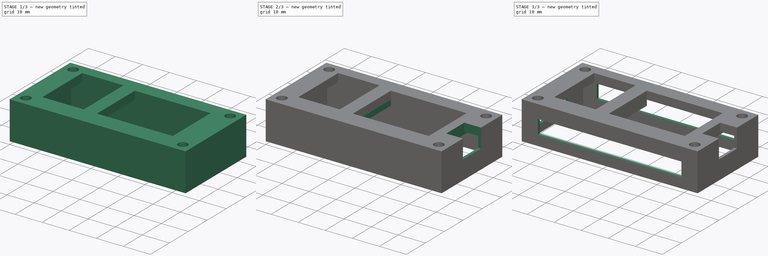
[diagram: build sequence overview — one tinted view per stage of 3, left to right]
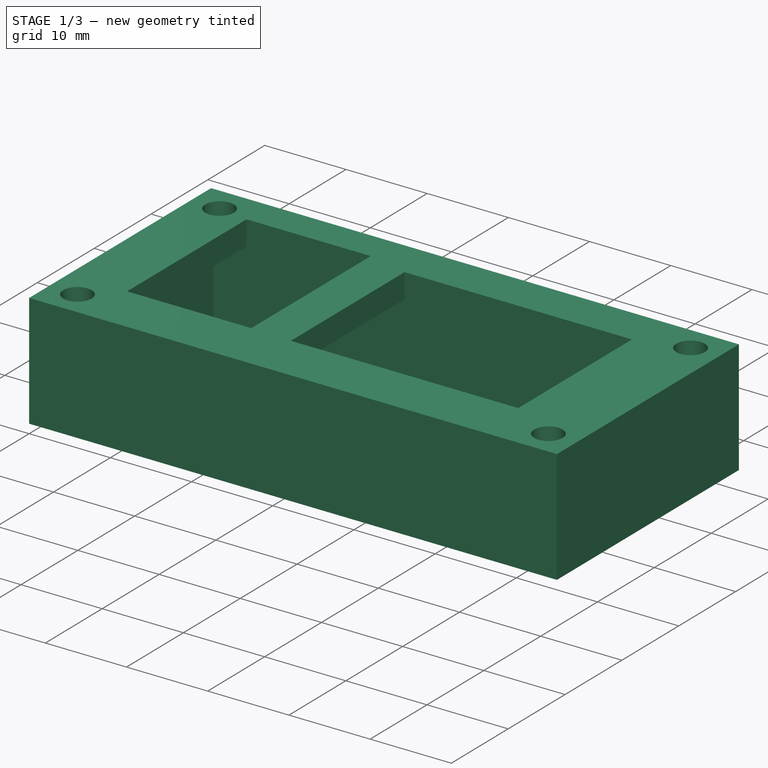
[diagram: stage 1 of 3 — iso view after this stage's code; geometry added in this stage tinted green]
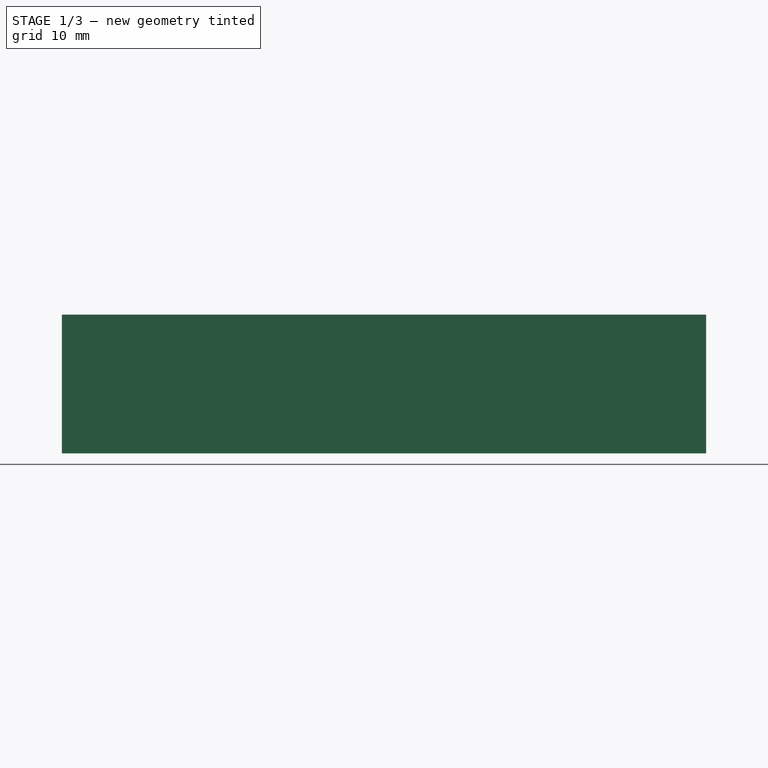
[diagram: stage 1 of 3 — front view after this stage's code; geometry added in this stage tinted green]
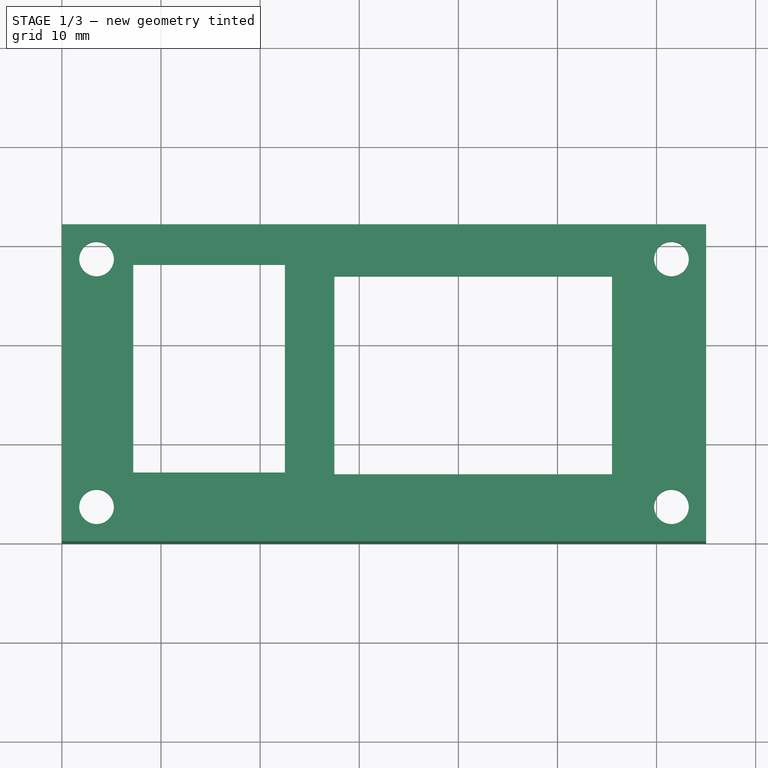
[diagram: stage 1 of 3 — top view after this stage's code; geometry added in this stage tinted green]
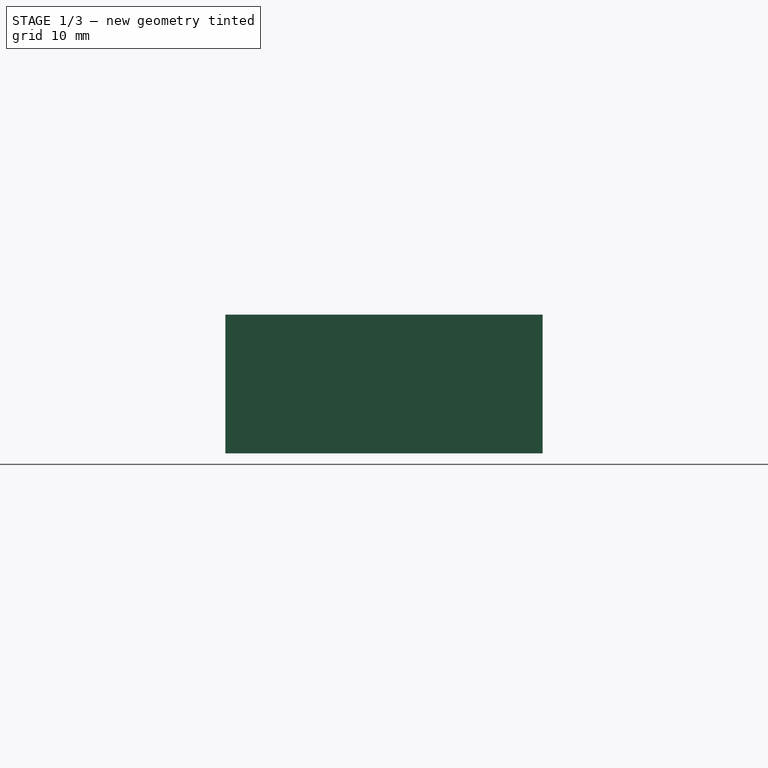
[diagram: stage 1 of 3 — right view after this stage's code; geometry added in this stage tinted green]
FCSTD DOCUMENT  (FreeCAD 0.16R6712 (Git))
Label: horizontal
License: All rights reserved
LicenseURL: http://en.wikipedia.org/wiki/All_rights_reserved
objects: Sketcher::SketchObject×6, PartDesign::Pocket×4, PartDesign::Pad×2
note: 18 computed .brp shape members not serialized (recipe doc carries the construction recipe); baked Part::Feature solids carry a one-line shape summary decoded from their .brp

FEATURE [Sketcher::SketchObject] Sketch
  sketch-geometry (20):
    g0: LineSegment StartX=0 StartY=32 StartZ=0 EndX=65 EndY=32 EndZ=0
    g1: LineSegment StartX=65 StartY=32 StartZ=0 EndX=65 EndY=0 EndZ=0
    g2: LineSegment StartX=65 StartY=0 StartZ=0 EndX=0 EndY=0 EndZ=0
    g3: LineSegment StartX=0 StartY=0 StartZ=0 EndX=0 EndY=32 EndZ=0
    g4: Circle CenterX=3.5 CenterY=28.5 CenterZ=0 NormalX=0 NormalY=0 NormalZ=1 Radius=1.75
    g5: Circle CenterX=61.5 CenterY=28.5 CenterZ=0 NormalX=0 NormalY=0 NormalZ=1 Radius=1.75
    g6: Circle CenterX=3.5 CenterY=3.5 CenterZ=0 NormalX=0 NormalY=0 NormalZ=1 Radius=1.75
    g7: Circle CenterX=61.5 CenterY=3.5 CenterZ=0 NormalX=0 NormalY=0 NormalZ=1 Radius=1.75
    g8: LineSegment [constr] StartX=0 StartY=28.5 StartZ=0 EndX=65 EndY=28.5 EndZ=0
    g9: LineSegment [constr] StartX=0 StartY=3.5 StartZ=0 EndX=65 EndY=3.5 EndZ=0
    g10: LineSegment [constr] StartX=3.5 StartY=32 StartZ=0 EndX=3.5 EndY=0.0651138 EndZ=0
    g11: LineSegment [constr] StartX=61.5 StartY=32 StartZ=0 EndX=61.5 EndY=0 EndZ=0
    g12: LineSegment StartX=27.5 StartY=26.7656 StartZ=0 EndX=55.5 EndY=26.7656 EndZ=0
    g13: LineSegment StartX=55.5 StartY=26.7656 StartZ=0 EndX=55.5 EndY=6.7656 EndZ=0
    g14: LineSegment StartX=55.5 StartY=6.7656 StartZ=0 EndX=27.5 EndY=6.7656 EndZ=0
    g15: LineSegment StartX=27.5 StartY=6.7656 StartZ=0 EndX=27.5 EndY=26.7656 EndZ=0
    g16: LineSegment StartX=7.19996 StartY=27.9539 StartZ=0 EndX=22.5 EndY=27.9539 EndZ=0
    g17: LineSegment StartX=22.5 StartY=27.9539 StartZ=0 EndX=22.5 EndY=6.95394 EndZ=0
    g18: LineSegment StartX=22.5 StartY=6.95394 StartZ=0 EndX=7.19996 EndY=6.95394 EndZ=0
    g19: LineSegment StartX=7.19996 StartY=6.95394 StartZ=0 EndX=7.19996 EndY=27.9539 EndZ=0
  constraints (60):
    c: Coincident(g0,g1)
    c: Coincident(g1,g2)
    c: Coincident(g2,g3)
    c: Coincident(g3,g0)
    c: Horizontal(g0)
    c: Horizontal(g2)
    c: Vertical(g1)
    c: Vertical(g3)
    c: DistanceX(g0,g0) = 65
    c: DistanceY(g3,g3) = 32
    c: Coincident(g2,g-1)
    c: PointOnObject(g8,g3)
    c: PointOnObject(g8,g1)
    c: Horizontal(g8)
    c: PointOnObject(g4,g8)
    c: PointOnObject(g5,g8)
    c: PointOnObject(g9,g3)
    c: PointOnObject(g9,g1)
    c: Horizontal(g9)
    c: PointOnObject(g6,g9)
    c: PointOnObject(g7,g9)
    c: PointOnObject(g10,g0)
    c: Vertical(g10)
    c: PointOnObject(g11,g0)
    c: PointOnObject(g11,g2)
    c: Vertical(g11)
    c: PointOnObject(g7,g11)
    c: PointOnObject(g5,g11)
    c: PointOnObject(g4,g10)
    c: PointOnObject(g6,g10)
    c: Distance(g10,g11) = 58
    c: Distance(g8,g9) = 25
    c: Coincident(g12,g13)
    c: Coincident(g13,g14)
    c: Coincident(g14,g15)
    c: Coincident(g15,g12)
    c: Horizontal(g12)
    c: Horizontal(g14)
    c: Vertical(g13)
    c: Vertical(g15)
    c: DistanceX(g12,g12) = 28
    c: DistanceY(g15,g15) = 20
    c: Coincident(g16,g17)
    c: Coincident(g17,g18)
    c: Coincident(g18,g19)
    c: Coincident(g19,g16)
    c: Horizontal(g16)
    c: Horizontal(g18)
    c: Vertical(g17)
    c: Vertical(g19)
    c: DistanceX(g18,g18) = 15.3
    c: DistanceY(g19,g19) = 21
    c: Distance(g12,g11) = 6
    c: Distance(g12,g17) = 5
    c: Distance(g9,g1) = 3.5
    c: Distance(g6,g9) = 3.5
    c: Equal(g4,g5)
    c: Equal(g5,g7)
    c: Equal(g7,g6)
    c: Radius(g4) = 1.75
FEATURE [PartDesign::Pad] Pad  label="base"
  Length = 14
  Length2 = 100
  Sketch = -> Sketch
  Type = 0
FEATURE [Sketcher::SketchObject] Sketch001
  ExternalGeometry = -> [Pad]
  Placement = pos=(0,0,0) rot=(1,0,0;3.14159rad)
  Support = -> Pad [Face17]
  sketch-geometry (4):
    g0: LineSegment StartX=1 StartY=-1 StartZ=0 EndX=64 EndY=-1 EndZ=0
    g1: LineSegment StartX=64 StartY=-1 StartZ=0 EndX=64 EndY=-31 EndZ=0
    g2: LineSegment StartX=64 StartY=-31 StartZ=0 EndX=1 EndY=-31 EndZ=0
    g3: LineSegment StartX=1 StartY=-31 StartZ=0 EndX=1 EndY=-1 EndZ=0
  constraints (12):
    c: Coincident(g0,g1)
    c: Coincident(g1,g2)
    c: Coincident(g2,g3)
    c: Coincident(g3,g0)
    c: Horizontal(g0)
    c: Horizontal(g2)
    c: Vertical(g1)
    c: Vertical(g3)
    c: Distance(g1,g-3) = 1
    c: DistanceY(g-1,g0) = -1
    c: DistanceX(g-2,g2) = 1
    c: Distance(g2,g-4) = 1
FEATURE [PartDesign::Pocket] Pocket  label="vaciado"
  Length = 11
  Sketch = -> Sketch001
  Type = 0
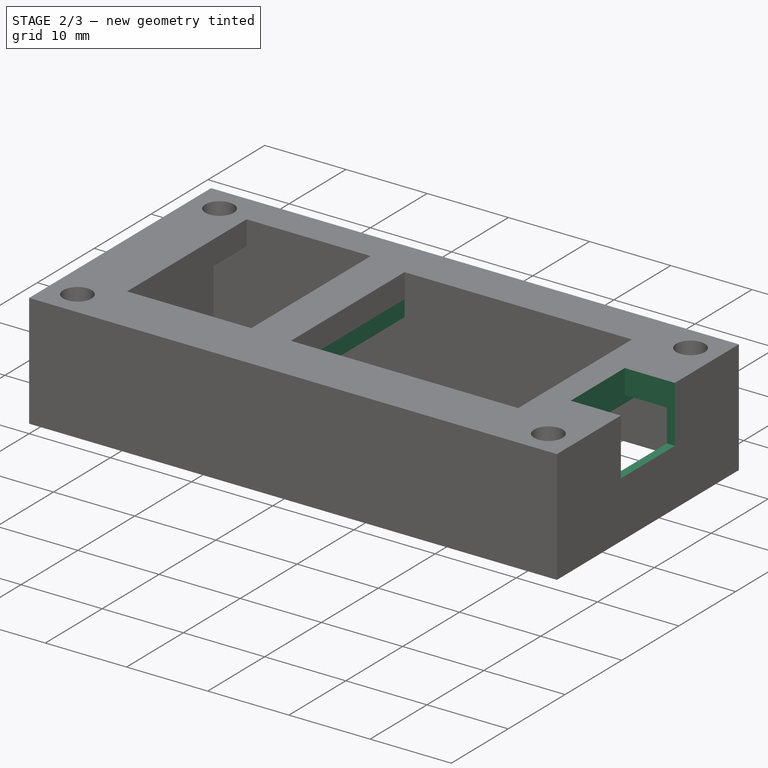
[diagram: stage 2 of 3 — iso view after this stage's code; geometry added in this stage tinted green]
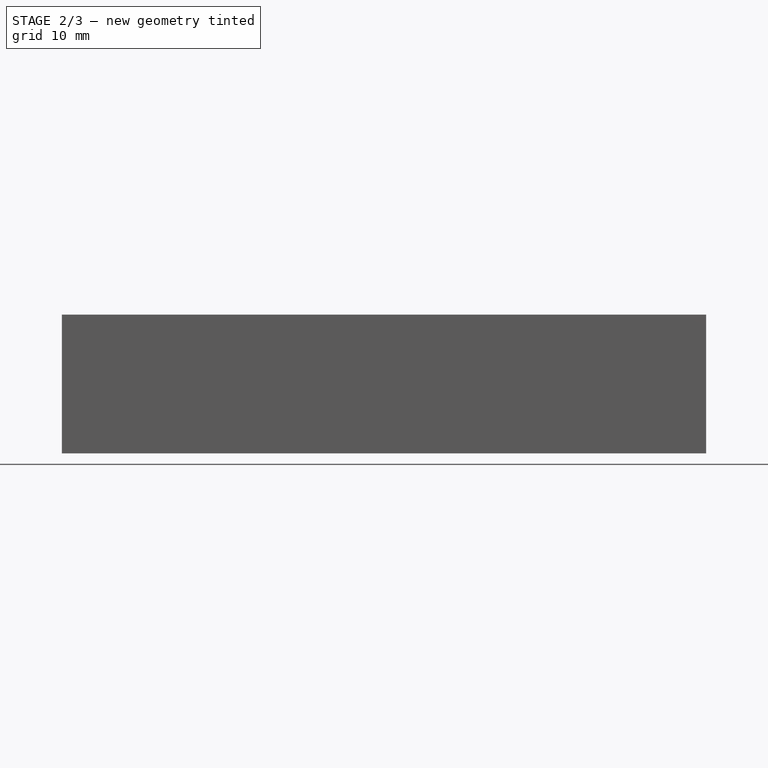
[diagram: stage 2 of 3 — front view after this stage's code; geometry added in this stage tinted green]
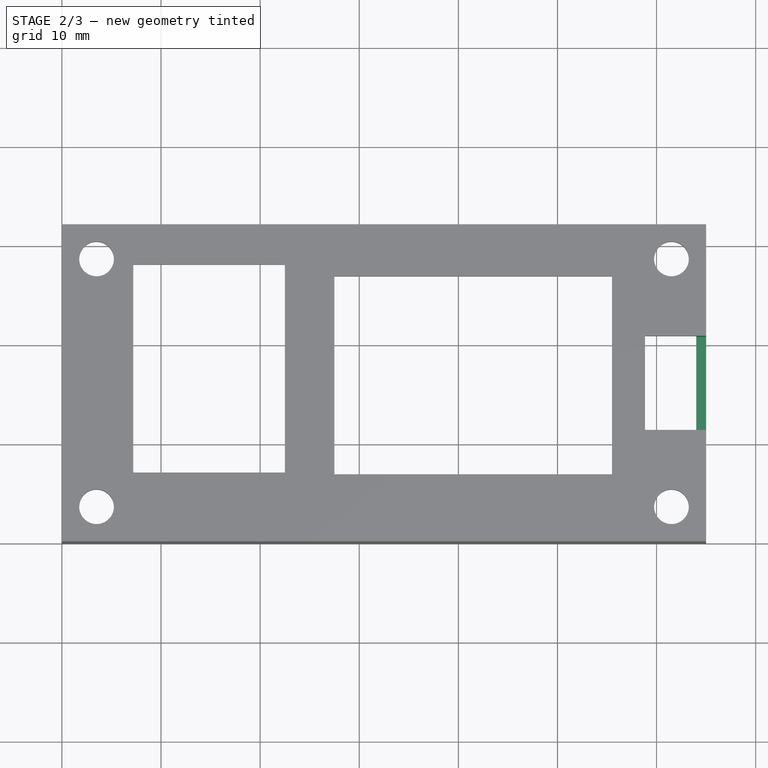
[diagram: stage 2 of 3 — top view after this stage's code; geometry added in this stage tinted green]
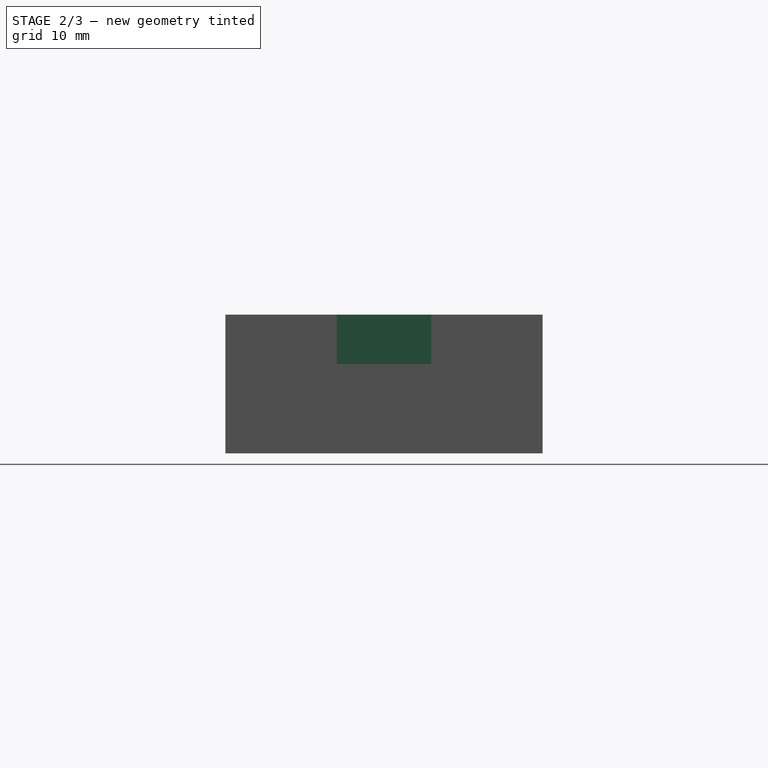
[diagram: stage 2 of 3 — right view after this stage's code; geometry added in this stage tinted green]
FEATURE [Sketcher::SketchObject] Sketch002
  ExternalGeometry = -> [Pocket]
  Placement = pos=(0,0,14) rot=(0,0,1;0rad)
  Support = -> Pocket [Face5]
  sketch-geometry (6):
    g0: LineSegment StartX=58.8252 StartY=20.75 StartZ=0 EndX=65 EndY=20.75 EndZ=0
    g1: LineSegment StartX=65 StartY=20.75 StartZ=0 EndX=65 EndY=11.25 EndZ=0
    g2: LineSegment StartX=65 StartY=11.25 StartZ=0 EndX=58.8252 EndY=11.25 EndZ=0
    g3: LineSegment StartX=58.8252 StartY=11.25 StartZ=0 EndX=58.8252 EndY=20.75 EndZ=0
    g4: LineSegment [constr] StartX=65 StartY=32 StartZ=0 EndX=65 EndY=20.75 EndZ=0
    g5: LineSegment [constr] StartX=65 StartY=11.25 StartZ=0 EndX=65 EndY=0 EndZ=0
  constraints (14):
    c: Coincident(g0,g1)
    c: Coincident(g1,g2)
    c: Coincident(g2,g3)
    c: Coincident(g3,g0)
    c: Horizontal(g0)
    c: Horizontal(g2)
    c: Vertical(g1)
    c: Vertical(g3)
    c: Distance(g3) = 9.5
    c: Vertical(g4)
    c: Vertical(g5)
    c: Equal(g5,g4)
    c: Coincident(g4,g0)
    c: Coincident(g5,g1)
FEATURE [PartDesign::Pocket] Pocket001  label="USB"
  Length = 7
  Sketch = -> Sketch002
  Type = 0
FEATURE [Sketcher::SketchObject] Sketch004
  ExternalGeometry = -> [Pocket001]
  Placement = pos=(0,0,11) rot=(1,0,0;3.14159rad)
  Support = -> Pocket001 [Face27]
  sketch-geometry (8):
    g0: LineSegment StartX=25.5 StartY=-6.7656 StartZ=0 EndX=27.5 EndY=-6.7656 EndZ=0
    g1: LineSegment StartX=27.5 StartY=-6.7656 StartZ=0 EndX=27.5 EndY=-26.7656 EndZ=0
    g2: LineSegment StartX=27.5 StartY=-26.7656 StartZ=0 EndX=25.5 EndY=-26.7656 EndZ=0
    g3: LineSegment StartX=25.5 StartY=-26.7656 StartZ=0 EndX=25.5 EndY=-6.7656 EndZ=0
    g4: LineSegment StartX=57.5 StartY=-6.7656 StartZ=0 EndX=55.5 EndY=-6.7656 EndZ=0
    g5: LineSegment StartX=55.5 StartY=-6.7656 StartZ=0 EndX=55.5 EndY=-26.7656 EndZ=0
    g6: LineSegment StartX=55.5 StartY=-26.7656 StartZ=0 EndX=57.5 EndY=-26.7656 EndZ=0
    g7: LineSegment StartX=57.5 StartY=-26.7656 StartZ=0 EndX=57.5 EndY=-6.7656 EndZ=0
  constraints (22):
    c: Coincident(g0,g1)
    c: Coincident(g1,g2)
    c: Coincident(g2,g3)
    c: Coincident(g3,g0)
    c: Horizontal(g0)
    c: Horizontal(g2)
    c: Vertical(g1)
    c: Vertical(g3)
    c: Coincident(g0,g-3)
    c: Coincident(g1,g-3)
    c: Coincident(g4,g5)
    c: Coincident(g5,g6)
    c: Coincident(g6,g7)
    c: Coincident(g7,g4)
    c: Horizontal(g4)
    c: Horizontal(g6)
    c: Vertical(g5)
    c: Vertical(g7)
    c: Coincident(g5,g-4)
    c: Coincident(g-4,g4)
    c: DistanceX(g0,g0) = 2
    c: DistanceX(g4,g4) = 2
FEATURE [PartDesign::Pad] Pad001
  Length = 2
  Length2 = 100
  Sketch = -> Sketch004
  Type = 0
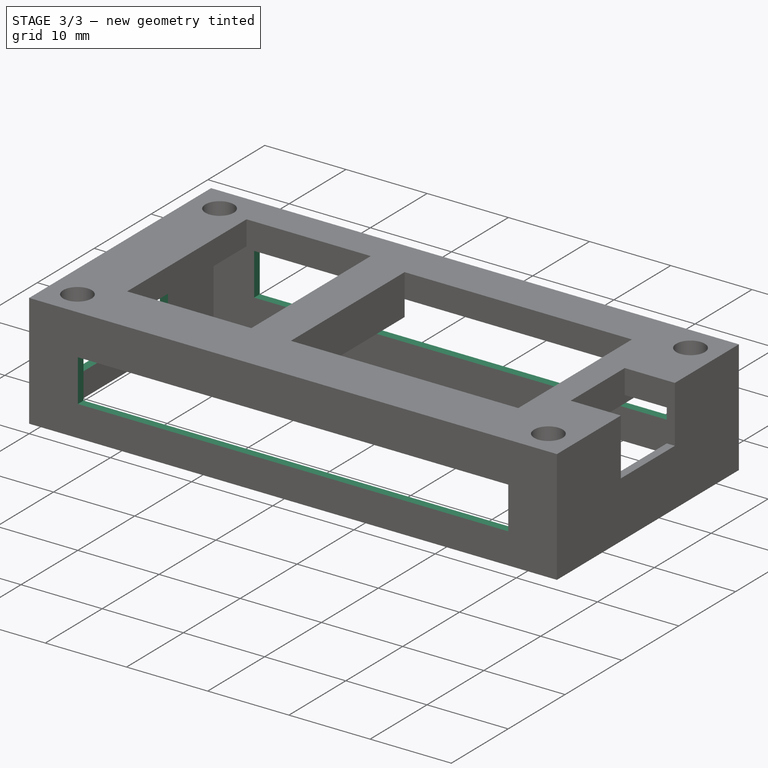
[diagram: stage 3 of 3 — iso view after this stage's code; geometry added in this stage tinted green]
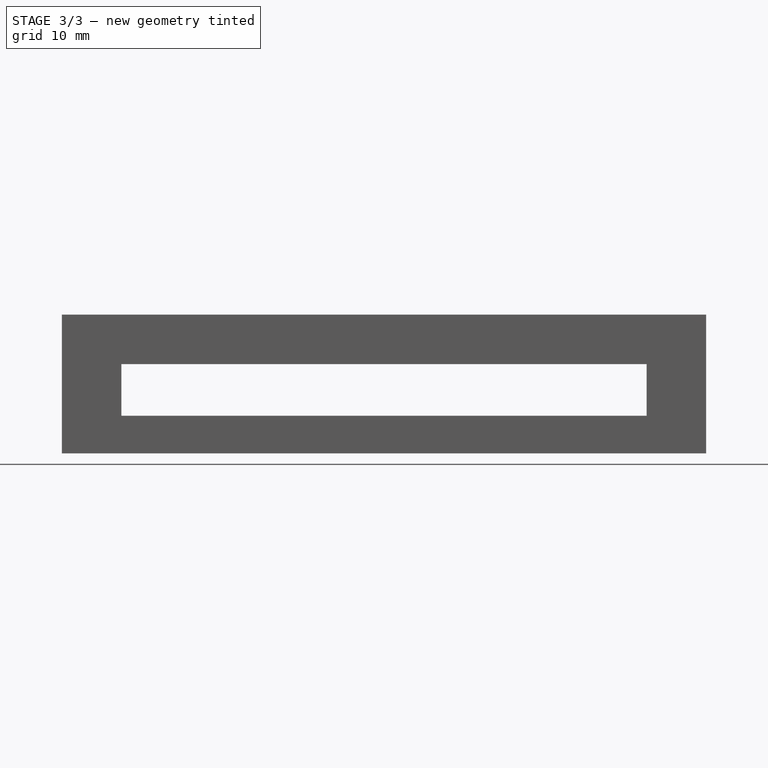
[diagram: stage 3 of 3 — front view after this stage's code; geometry added in this stage tinted green]
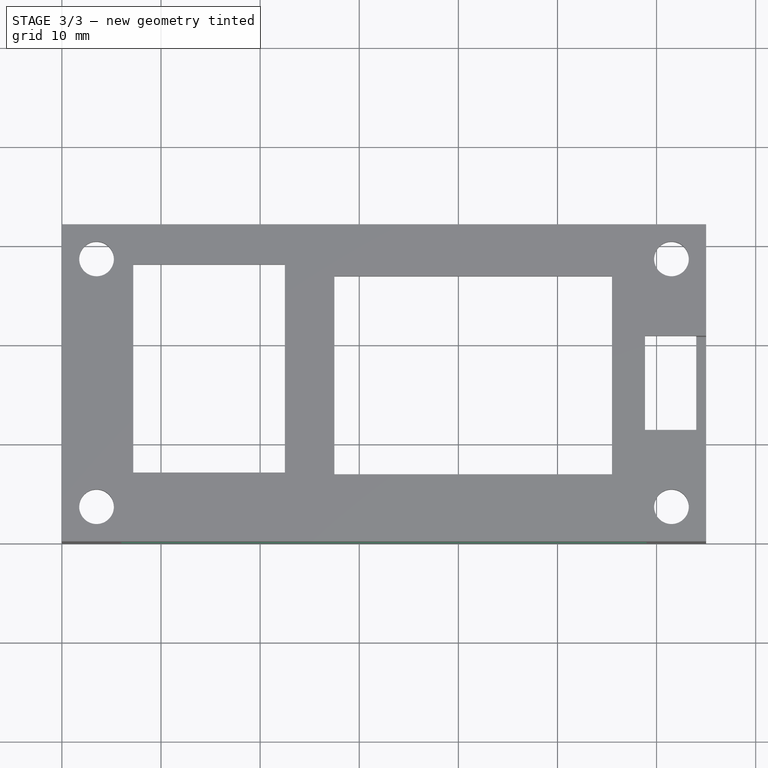
[diagram: stage 3 of 3 — top view after this stage's code; geometry added in this stage tinted green]
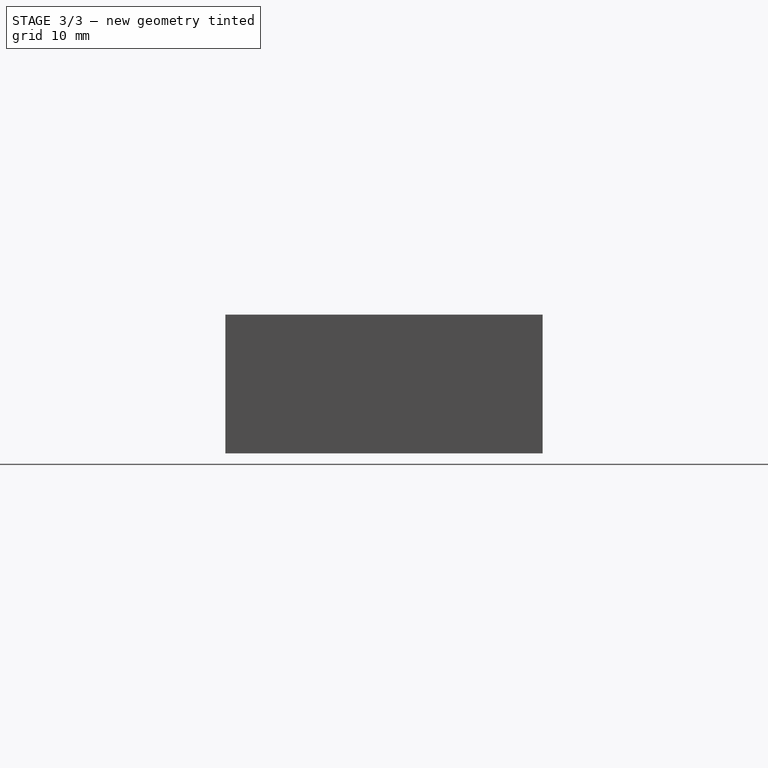
[diagram: stage 3 of 3 — right view after this stage's code; geometry added in this stage tinted green]
FEATURE [Sketcher::SketchObject] Sketch005
  Placement = pos=(0,0,0) rot=(0.57735,-0.57735,-0.57735;2.0944rad)
  Support = -> Pad001 [Face2]
  sketch-geometry (4):
    g0: LineSegment StartX=-23 StartY=7 StartZ=0 EndX=-8 EndY=7 EndZ=0
    g1: LineSegment StartX=-8 StartY=7 StartZ=0 EndX=-8 EndY=3 EndZ=0
    g2: LineSegment StartX=-8 StartY=3 StartZ=0 EndX=-23 EndY=3 EndZ=0
    g3: LineSegment StartX=-23 StartY=3 StartZ=0 EndX=-23 EndY=7 EndZ=0
  constraints (12):
    c: Coincident(g0,g1)
    c: Coincident(g1,g2)
    c: Coincident(g2,g3)
    c: Coincident(g3,g0)
    c: Horizontal(g0)
    c: Horizontal(g2)
    c: Vertical(g1)
    c: Vertical(g3)
    c: DistanceX(g2,g2) = 15
    c: DistanceY(g3,g3) = 4
    c: DistanceY(g-1,g1) = 3
    c: DistanceX(g-2,g0) = -8
FEATURE [PartDesign::Pocket] Pocket002  label="carcasa_vertical"
  Length = 5
  Sketch = -> Sketch005
  Type = 0
FEATURE [Sketcher::SketchObject] Sketch003  label="leds"
  ExternalGeometry = -> [Pocket001]
  Placement = pos=(0,32,0) rot=(0,0.707107,0.707107;3.14159rad)
  Support = -> Pocket002 [Face1]
  sketch-geometry (6):
    g0: LineSegment StartX=-59 StartY=9 StartZ=0 EndX=-6 EndY=9 EndZ=0
    g1: LineSegment StartX=-6 StartY=9 StartZ=0 EndX=-6 EndY=3.8 EndZ=0
    g2: LineSegment StartX=-6 StartY=3.8 StartZ=0 EndX=-59 EndY=3.8 EndZ=0
    g3: LineSegment StartX=-59 StartY=3.8 StartZ=0 EndX=-59 EndY=9 EndZ=0
    g4: LineSegment [constr] StartX=-65 StartY=9 StartZ=0 EndX=-59 EndY=9 EndZ=0
    g5: LineSegment [constr] StartX=-6 StartY=9 StartZ=0 EndX=0 EndY=9 EndZ=0
  constraints (18):
    c: Coincident(g0,g1)
    c: Coincident(g1,g2)
    c: Coincident(g2,g3)
    c: Coincident(g3,g0)
    c: Horizontal(g0)
    c: Horizontal(g2)
    c: Vertical(g1)
    c: Vertical(g3)
    c: DistanceY(g1,g1) = 5.2
    c: DistanceX(g0,g0) = 53
    c: Horizontal(g4)
    c: Horizontal(g5)
    c: Equal(g4,g5)
    c: PointOnObject(g5,g-2)
    c: Coincident(g5,g0)
    c: Coincident(g4,g0)
    c: PointOnObject(g4,g-3)
    c: Distance(g0,g-4) = 5
FEATURE [PartDesign::Pocket] Pocket003  label="version_led"
  Length = 5
  Sketch = -> Sketch003
  Type = 1
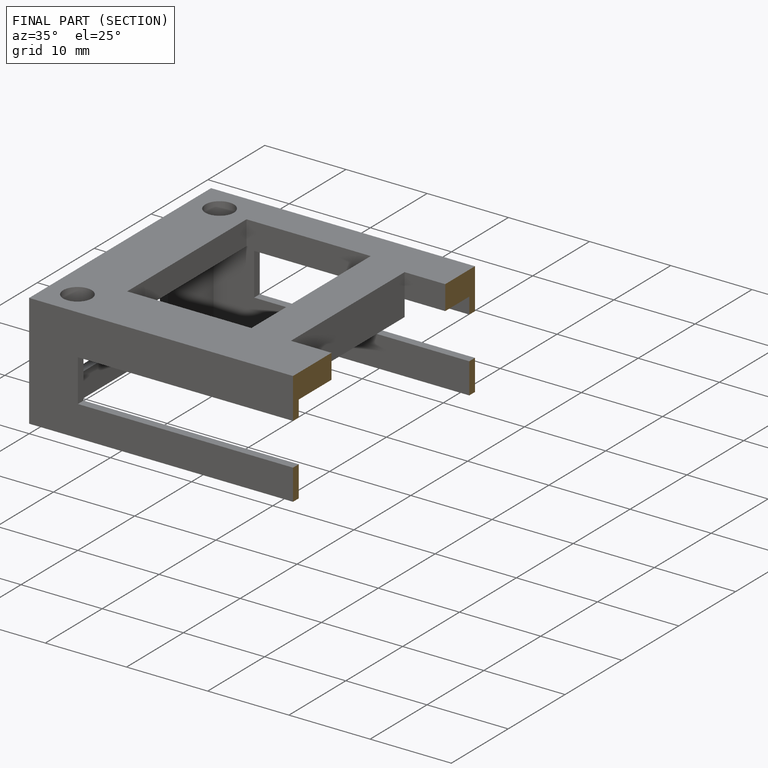
[diagram: finished part — half-section view (interior)]
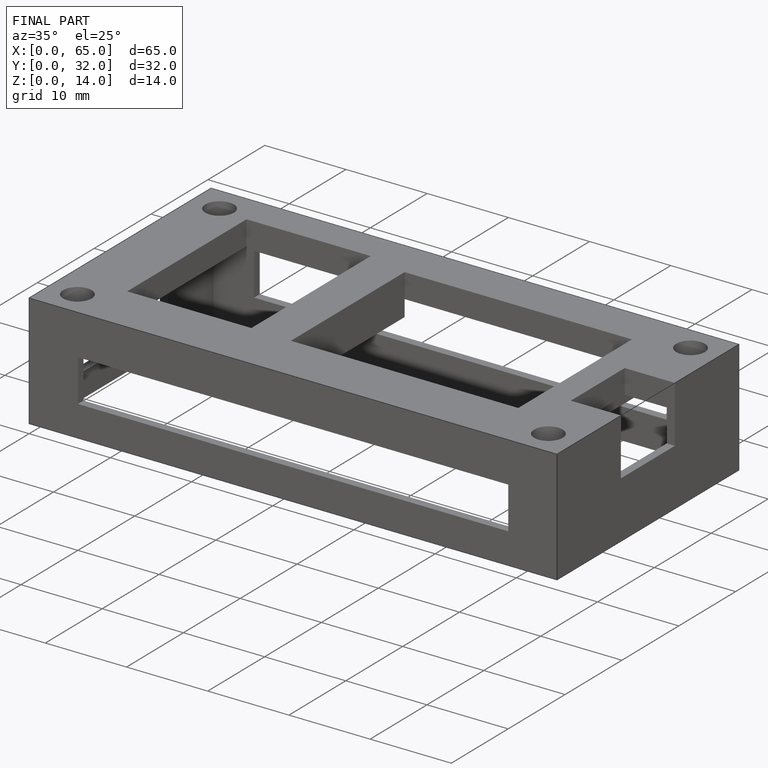
[diagram: finished part — iso view with bounding-box wireframe]
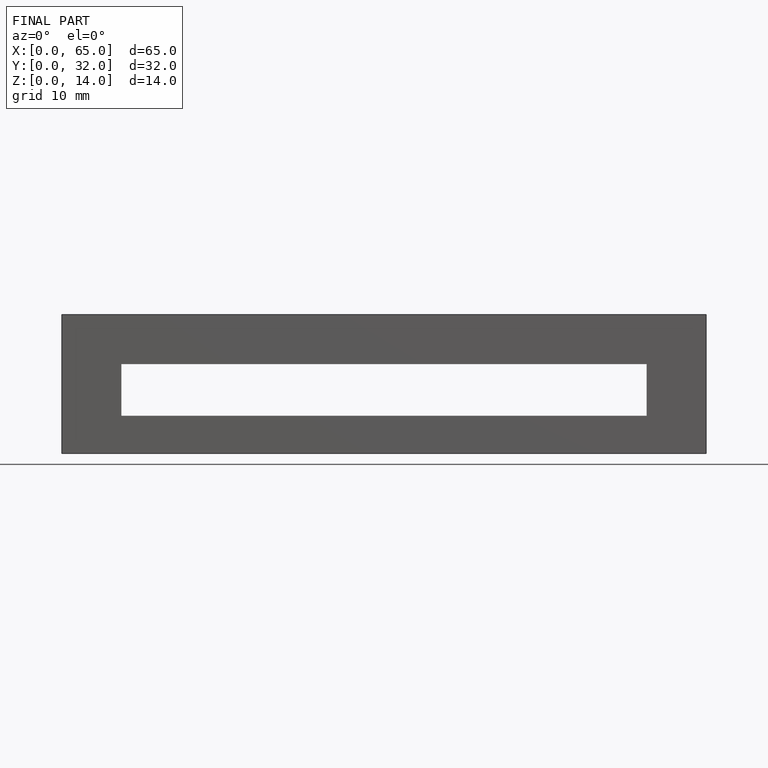
[diagram: finished part — front view with bounding-box wireframe]
